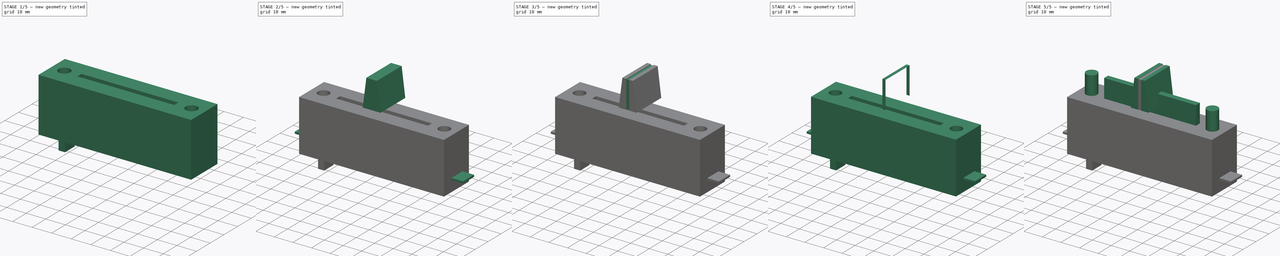
[diagram: build sequence overview — one tinted view per stage of 5, left to right]
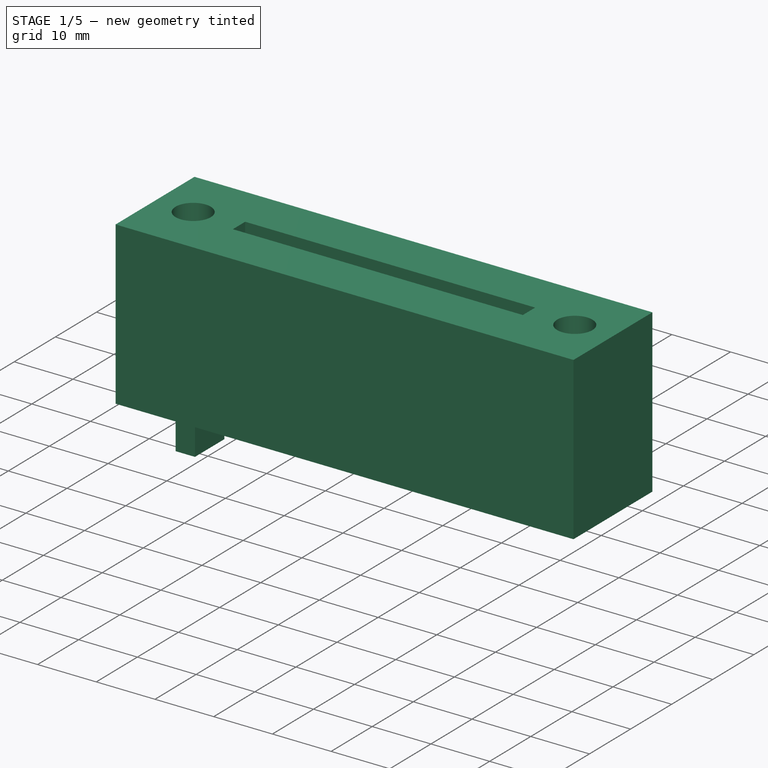
[diagram: stage 1 of 5 — iso view after this stage's code; geometry added in this stage tinted green]
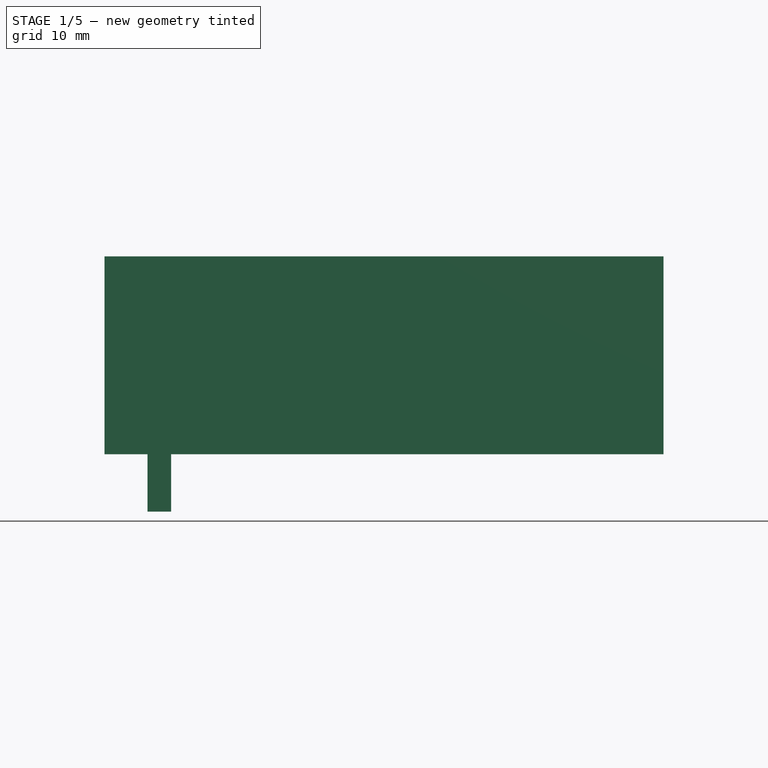
[diagram: stage 1 of 5 — front view after this stage's code; geometry added in this stage tinted green]
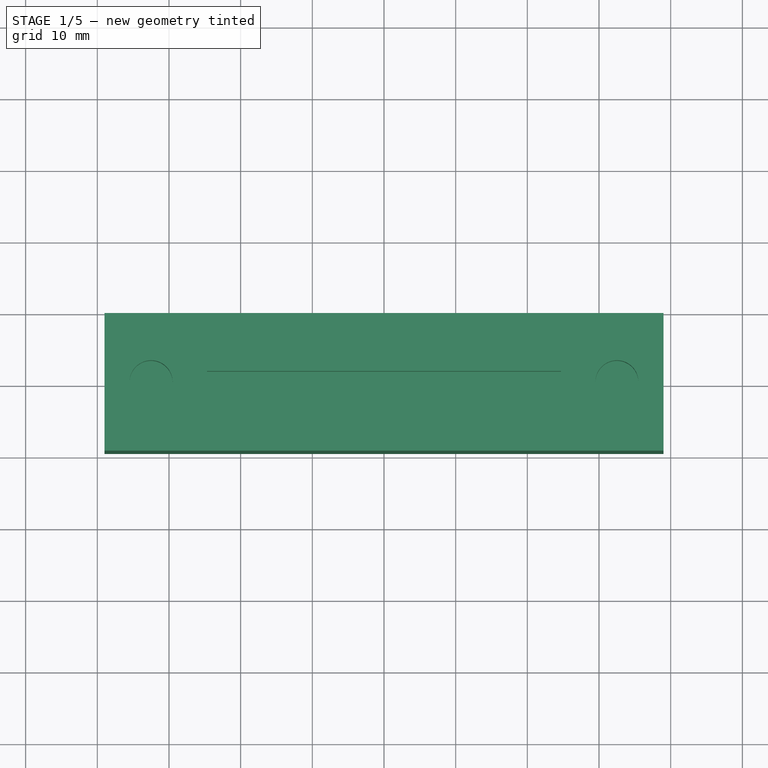
[diagram: stage 1 of 5 — top view after this stage's code; geometry added in this stage tinted green]
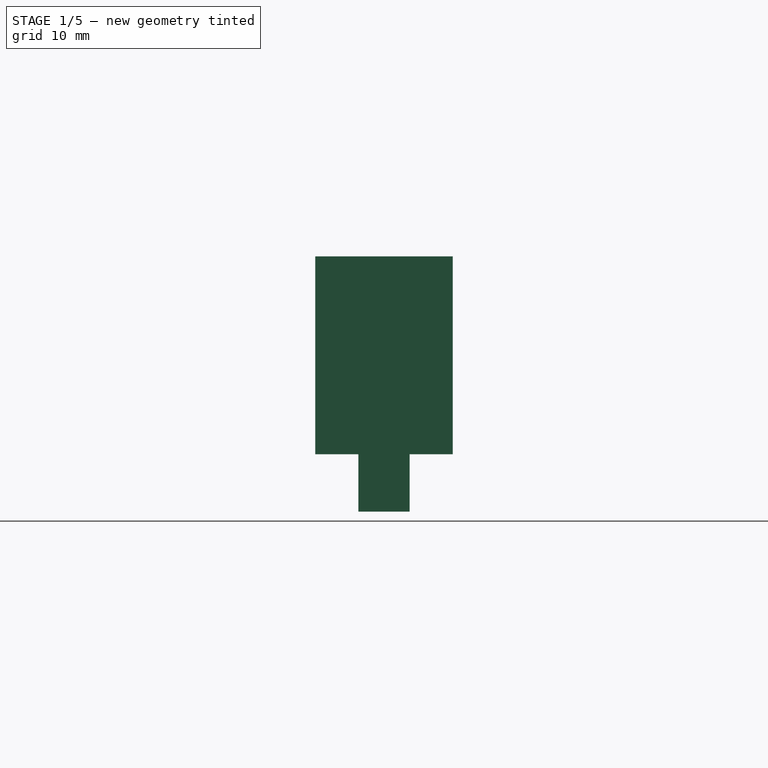
[diagram: stage 1 of 5 — right view after this stage's code; geometry added in this stage tinted green]
FCSTD DOCUMENT  (FreeCAD 0.18R13530 (Git))
Label: infiniumX1
License: All rights reserved
LicenseURL: http://en.wikipedia.org/wiki/All_rights_reserved
objects: Sketcher::SketchObject×14, Part::Extrusion×6, PartDesign::Pocket×5, PartDesign::Pad×3, Part::Compound×3, Part::Mirroring×2, Part::Feature×2
note: 43 computed .brp shape members not serialized (recipe doc carries the construction recipe); baked Part::Feature solids carry a one-line shape summary decoded from their .brp

FEATURE [Sketcher::SketchObject] Sketch
  MapMode = 5
  sketch-geometry (4):
    g0: LineSegment StartX=-39 StartY=9.6 StartZ=0 EndX=39 EndY=9.6 EndZ=0
    g1: LineSegment StartX=39 StartY=9.6 StartZ=0 EndX=39 EndY=-9.6 EndZ=0
    g2: LineSegment StartX=39 StartY=-9.6 StartZ=0 EndX=-39 EndY=-9.6 EndZ=0
    g3: LineSegment StartX=-39 StartY=-9.6 StartZ=0 EndX=-39 EndY=9.6 EndZ=0
  constraints (12):
    c: Coincident(g0,g1)
    c: Coincident(g1,g2)
    c: Coincident(g2,g3)
    c: Coincident(g3,g0)
    c: Horizontal(g0)
    c: Horizontal(g2)
    c: Vertical(g1)
    c: Vertical(g3)
    c: Symmetric(g2,g1,g-2)
    c: Symmetric(g1,g0,g-1)
    c: DistanceX(g2,g2) = 78
    c: DistanceY(g1,g1) = 19.2
FEATURE [PartDesign::Pad] Pad  label="_body"
  Length = 27.6
  Length2 = 100
  Profile = -> Sketch
  Reversed = true
  Type = 0
FEATURE [Sketcher::SketchObject] Sketch001  label="skrews"
  MapMode = 5
  Support = -> [Pad]
  sketch-geometry (2):
    g0: Circle CenterX=-32.5 CenterY=0 CenterZ=0 NormalX=0 NormalY=0 NormalZ=1 AngleXU=0 Radius=3
    g1: Circle CenterX=32.5 CenterY=0 CenterZ=0 NormalX=0 NormalY=0 NormalZ=1 AngleXU=0 Radius=3
  constraints (6):
    c: PointOnObject(g0,g-1)
    c: PointOnObject(g1,g-1)
    c: Equal(g0,g1)
    c: Radius(g0) = 3
    c: Symmetric(g1,g0,g-2)
    c: DistanceX(g0,g1) = 65
FEATURE [PartDesign::Pocket] Pocket
  Length = 5
  Length2 = 100
  Profile = -> Sketch001
  Type = 0
FEATURE [Sketcher::SketchObject] Sketch002
  ExternalGeometry = -> [Pocket]
  MapMode = 5
  Support = -> [Pocket]
  sketch-geometry (4):
    g0: LineSegment StartX=-24.7 StartY=1.5 StartZ=0 EndX=24.7 EndY=1.5 EndZ=0
    g1: LineSegment StartX=24.7 StartY=1.5 StartZ=0 EndX=24.7 EndY=-1.5 EndZ=0
    g2: LineSegment StartX=24.7 StartY=-1.5 StartZ=0 EndX=-24.7 EndY=-1.5 EndZ=0
    g3: LineSegment StartX=-24.7 StartY=-1.5 StartZ=0 EndX=-24.7 EndY=1.5 EndZ=0
  constraints (12):
    c: Coincident(g0,g1)
    c: Coincident(g1,g2)
    c: Coincident(g2,g3)
    c: Coincident(g3,g0)
    c: Horizontal(g0)
    c: Horizontal(g2)
    c: Vertical(g1)
    c: Vertical(g3)
    c: Symmetric(g0,g1,g-1)
    c: Symmetric(g0,g0,g-2)
    c: DistanceX(g-3,g0) = 14.3
    c: DistanceY(g1,g0) = 3
FEATURE [PartDesign::Pocket] Pocket001  label="Body"
  Length = 5
  Length2 = 100
  Profile = -> Sketch002
  Type = 0
FEATURE [Sketcher::SketchObject] Sketch012
  MapMode = 5
  Placement = pos=(0,0,-27.6) rot=(1,0,0;3.14159rad)
  sketch-geometry (4):
    g0: LineSegment StartX=-33 StartY=3.575 StartZ=0 EndX=-29.7 EndY=3.575 EndZ=0
    g1: LineSegment StartX=-29.7 StartY=3.575 StartZ=0 EndX=-29.7 EndY=-3.575 EndZ=0
    g2: LineSegment StartX=-29.7 StartY=-3.575 StartZ=0 EndX=-33 EndY=-3.575 EndZ=0
    g3: LineSegment StartX=-33 StartY=-3.575 StartZ=0 EndX=-33 EndY=3.575 EndZ=0
  constraints (11):
    c: Coincident(g0,g1)
    c: Coincident(g1,g2)
    c: Coincident(g2,g3)
    c: Coincident(g3,g0)
    c: Horizontal(g0)
    c: Horizontal(g2)
    c: Vertical(g1)
    c: Vertical(g3)
    c: Symmetric(g1,g0,g-1)
    c: DistanceX(g0,g0) = 3.3
    c: DistanceY(g3,g3) = 7.15
FEATURE [Part::Extrusion] Extrude004
  Base = -> Sketch012
  Dir = (0,0,-8)
  DirMode = 0
  FaceMakerClass = Part::FaceMakerExtrusion
  LengthFwd = 0
  LengthRev = 0
  Solid = true
  Symmetric = false
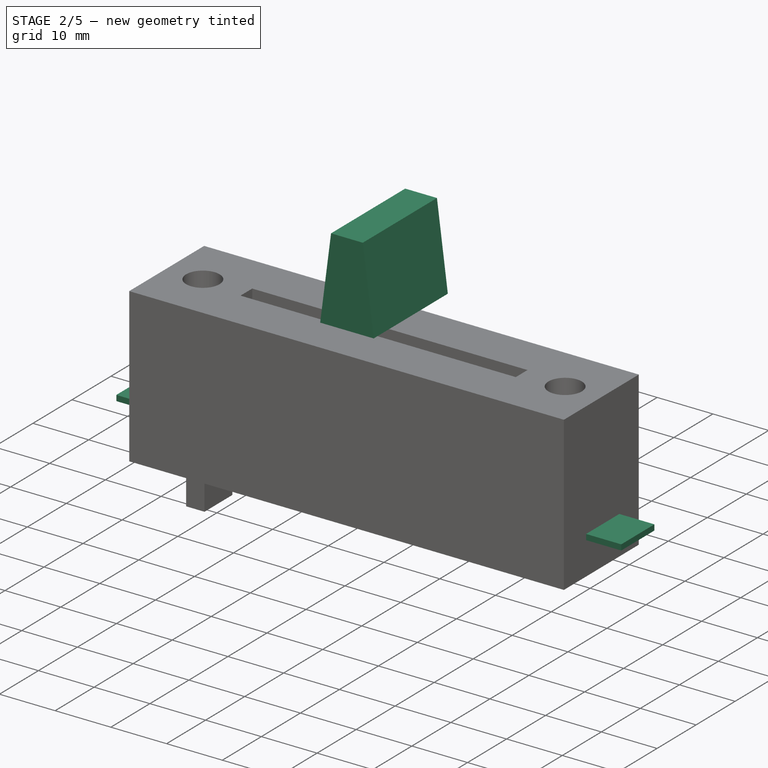
[diagram: stage 2 of 5 — iso view after this stage's code; geometry added in this stage tinted green]
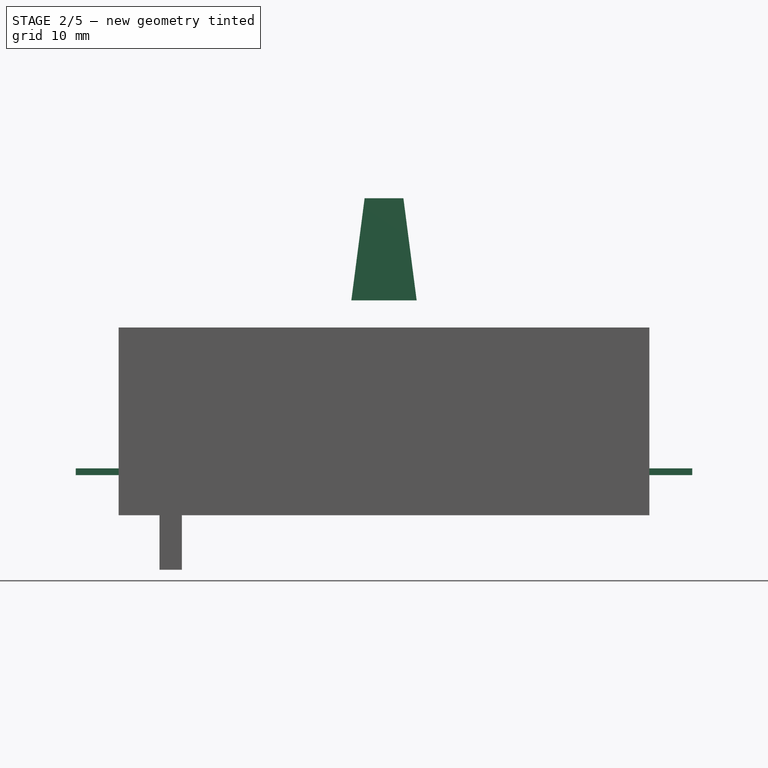
[diagram: stage 2 of 5 — front view after this stage's code; geometry added in this stage tinted green]
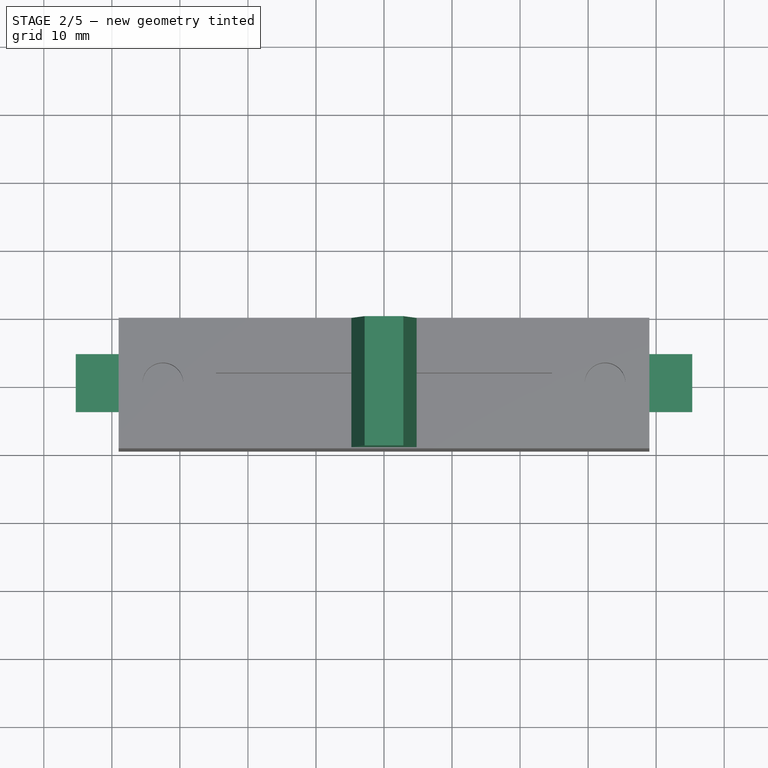
[diagram: stage 2 of 5 — top view after this stage's code; geometry added in this stage tinted green]
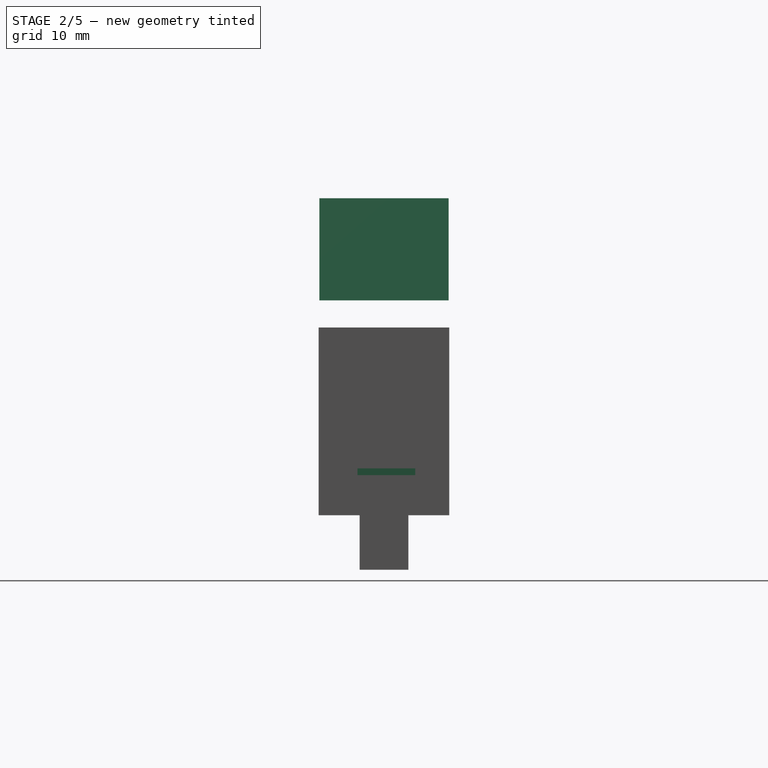
[diagram: stage 2 of 5 — right view after this stage's code; geometry added in this stage tinted green]
FEATURE [Sketcher::SketchObject] Sketch005
  ExternalGeometry = -> [Pocket001]
  MapMode = 5
  Placement = pos=(-39,0,0) rot=(0.57735,-0.57735,-0.57735;2.0944rad)
  Support = -> [Pocket001]
  sketch-geometry (4):
    g0: LineSegment StartX=-4.6 StartY=-20.7 StartZ=0 EndX=3.9 EndY=-20.7 EndZ=0
    g1: LineSegment StartX=3.9 StartY=-20.7 StartZ=0 EndX=3.9 EndY=-21.7 EndZ=0
    g2: LineSegment StartX=3.9 StartY=-21.7 StartZ=0 EndX=-4.6 EndY=-21.7 EndZ=0
    g3: LineSegment StartX=-4.6 StartY=-21.7 StartZ=0 EndX=-4.6 EndY=-20.7 EndZ=0
  constraints (12):
    c: Coincident(g0,g1)
    c: Coincident(g1,g2)
    c: Coincident(g2,g3)
    c: Coincident(g3,g0)
    c: Horizontal(g0)
    c: Horizontal(g2)
    c: Vertical(g1)
    c: Vertical(g3)
    c: DistanceX(g0,g0) = 8.5
    c: DistanceY(g1,g1) = 1
    c: DistanceY(g-3,g1) = 5.9
    c: DistanceX(g1,g-3) = 5.7
FEATURE [Part::Extrusion] Extrude002
  Base = -> Sketch005
  Dir = (-6.3,0,0)
  DirMode = 0
  FaceMakerClass = Part::FaceMakerExtrusion
  LengthFwd = 0
  LengthRev = 0
  Solid = true
  Symmetric = false
FEATURE [Part::Mirroring] Part__Mirroring  label="Extrude002 (Mirror #1)"
  Base = (0,0,0)
  Normal = (1,0,0)
  Source = -> Extrude002
FEATURE [Sketcher::SketchObject] Sketch007
  MapMode = 5
  Placement = pos=(0,0,0) rot=(1,0,0;1.5708rad)
  sketch-geometry (4):
    g0: LineSegment StartX=-2.85 StartY=19 StartZ=0 EndX=2.85 EndY=19 EndZ=0
    g1: LineSegment StartX=2.85 StartY=19 StartZ=0 EndX=4.8 EndY=4 EndZ=0
    g2: LineSegment StartX=4.8 StartY=4 StartZ=0 EndX=-4.8 EndY=4 EndZ=0
    g3: LineSegment StartX=-4.8 StartY=4 StartZ=0 EndX=-2.85 EndY=19 EndZ=0
  constraints (12):
    c: Horizontal(g0)
    c: Coincident(g0,g1)
    c: Coincident(g1,g2)
    c: Horizontal(g2)
    c: Coincident(g2,g3)
    c: Coincident(g3,g0)
    c: DistanceY(g1,g0) = 15
    c: Symmetric(g0,g0,g-2)
    c: Symmetric(g1,g2,g-2)
    c: DistanceX(g0,g0) = 5.7
    c: DistanceX(g2,g2) = 9.6
    c: DistanceY(g-1,g1) = 4
FEATURE [PartDesign::Pad] Pad002
  Length = 19
  Length2 = 100
  Midplane = true
  Placement = pos=(0,0,0) rot=(1,0,0;1.5708rad)
  Profile = -> Sketch007
  Type = 0
FEATURE [Part::Compound] Compound002  label="CrossfaderBody"
  Links = -> [Extrude004,Pocket001,Part__Mirroring,Extrude002]
FEATURE [Part::Feature] Pad001001  label="CrossfaderNeck001"
  Placement = pos=(-21,0,0) rot=(1,0,0;1.5708rad)
  shape: bbox 6 x 1.2 x 12 mm, 12 faces (baked)
FEATURE [Part::Feature] Pocket004001  label="CrossfaderTop001"
  Placement = pos=(-21,0,0) rot=(1,0,0;1.5708rad)
  shape: bbox 9.6 x 19 x 15 mm, 18 faces (baked)
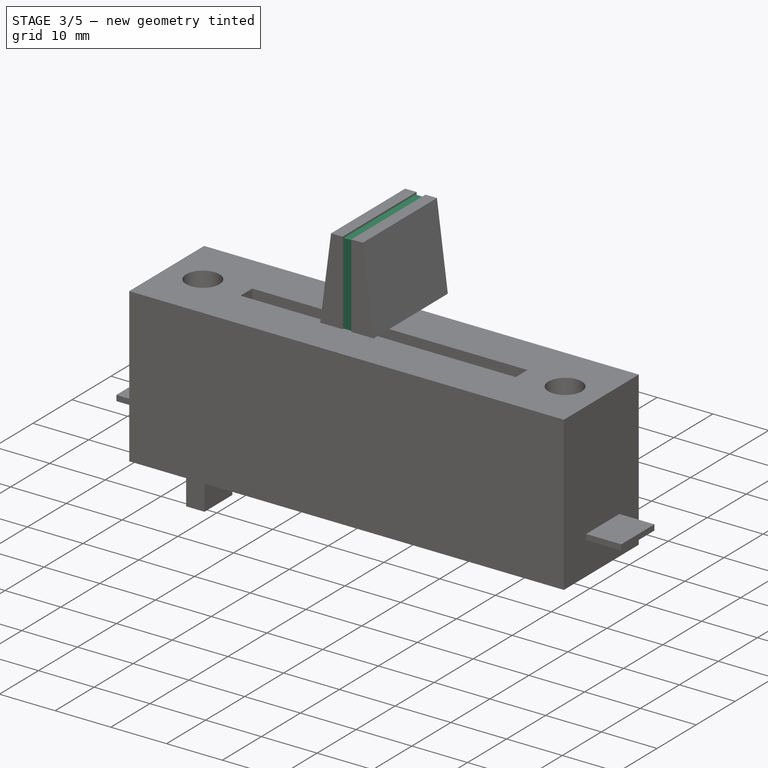
[diagram: stage 3 of 5 — iso view after this stage's code; geometry added in this stage tinted green]
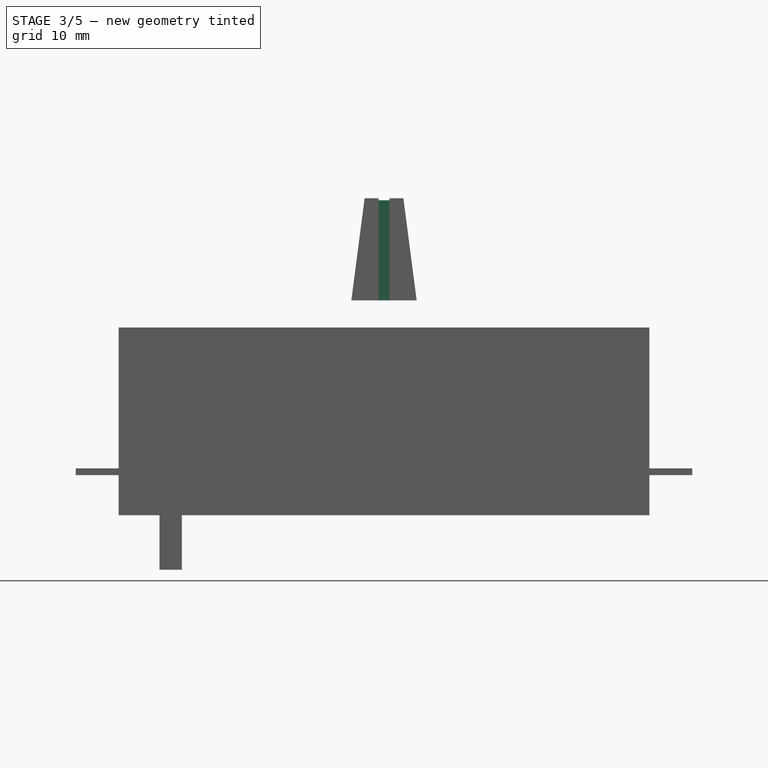
[diagram: stage 3 of 5 — front view after this stage's code; geometry added in this stage tinted green]
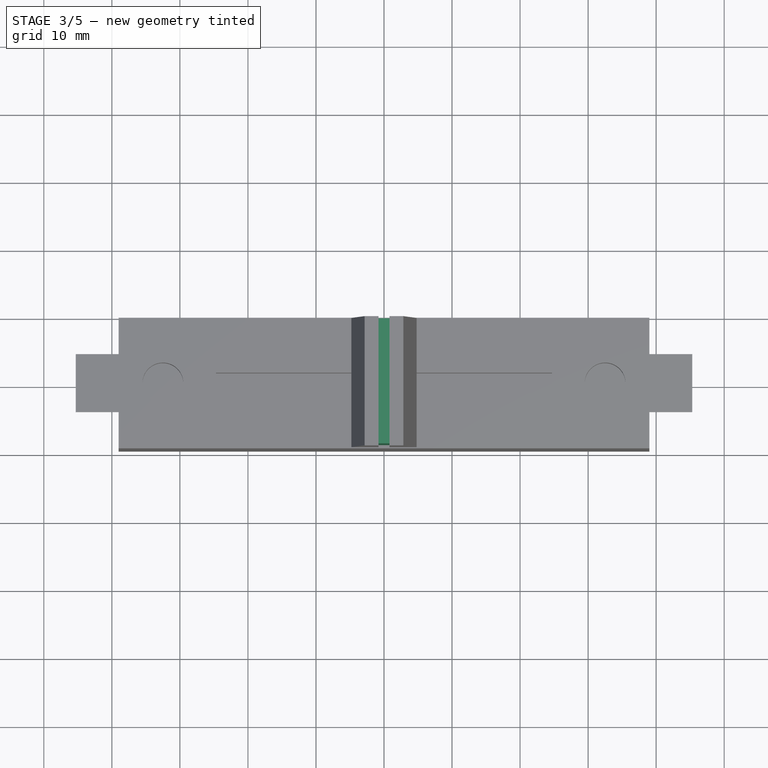
[diagram: stage 3 of 5 — top view after this stage's code; geometry added in this stage tinted green]
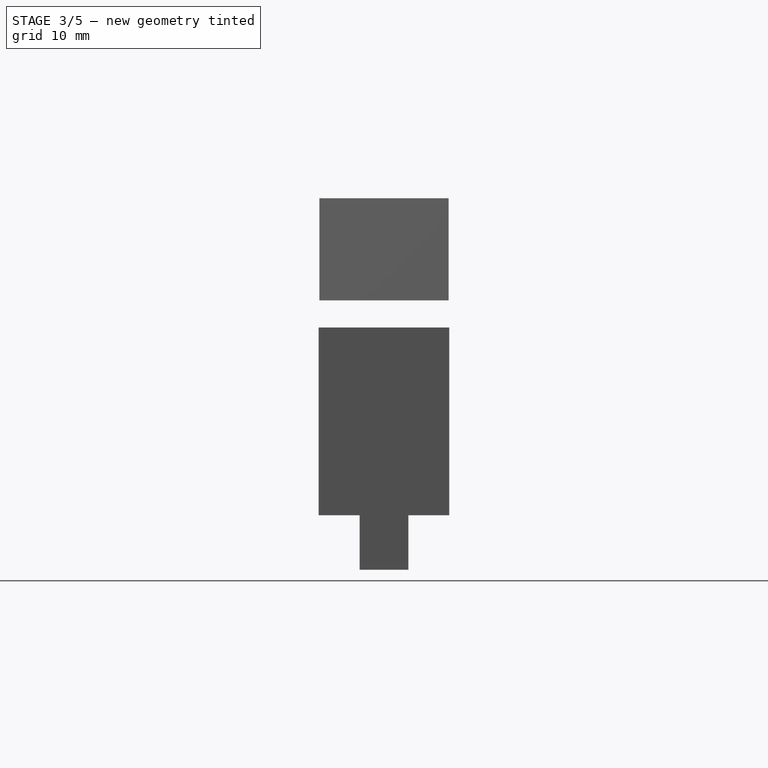
[diagram: stage 3 of 5 — right view after this stage's code; geometry added in this stage tinted green]
FEATURE [Sketcher::SketchObject] Sketch008
  ExternalGeometry = -> [Pad002]
  MapMode = 5
  Placement = pos=(0,9.5,0) rot=(-1,0,0;1.5708rad)
  Support = -> [Pad002]
  sketch-geometry (4):
    g0: LineSegment StartX=-0.8 StartY=-4 StartZ=0 EndX=0.8 EndY=-4 EndZ=0
    g1: LineSegment StartX=0.8 StartY=-4 StartZ=0 EndX=0.8 EndY=-19 EndZ=0
    g2: LineSegment StartX=0.8 StartY=-19 StartZ=0 EndX=-0.8 EndY=-19 EndZ=0
    g3: LineSegment StartX=-0.8 StartY=-19 StartZ=0 EndX=-0.8 EndY=-4 EndZ=0
  constraints (12):
    c: Coincident(g0,g1)
    c: Coincident(g1,g2)
    c: Coincident(g2,g3)
    c: Coincident(g3,g0)
    c: Horizontal(g0)
    c: Horizontal(g2)
    c: Vertical(g1)
    c: Vertical(g3)
    c: PointOnObject(g1,g-4)
    c: Symmetric(g0,g0,g-2)
    c: DistanceX(g0,g0) = 1.6
    c: PointOnObject(g0,g-3)
FEATURE [PartDesign::Pocket] Pocket002
  Length = 0.3
  Length2 = 100
  Placement = pos=(0,0,0) rot=(1,0,0;1.5708rad)
  Profile = -> Sketch008
  Type = 0
FEATURE [Sketcher::SketchObject] Sketch009
  ExternalGeometry = -> [Pocket002]
  MapMode = 5
  Placement = pos=(0,-9.5,0) rot=(1,0,0;1.5708rad)
  Support = -> [Pocket002]
  sketch-geometry (4):
    g0: LineSegment StartX=-0.8 StartY=19 StartZ=0 EndX=0.8 EndY=19 EndZ=0
    g1: LineSegment StartX=0.8 StartY=19 StartZ=0 EndX=0.8 EndY=4 EndZ=0
    g2: LineSegment StartX=0.8 StartY=4 StartZ=0 EndX=-0.8 EndY=4 EndZ=0
    g3: LineSegment StartX=-0.8 StartY=4 StartZ=0 EndX=-0.8 EndY=19 EndZ=0
  constraints (12):
    c: Coincident(g0,g1)
    c: Coincident(g1,g2)
    c: Coincident(g2,g3)
    c: Coincident(g3,g0)
    c: Horizontal(g0)
    c: Horizontal(g2)
    c: Vertical(g1)
    c: Vertical(g3)
    c: DistanceX(g0,g0) = 1.6
    c: PointOnObject(g1,g-4)
    c: PointOnObject(g0,g-3)
    c: Symmetric(g1,g2,g-2)
FEATURE [PartDesign::Pocket] Pocket003
  Length = 0.3
  Length2 = 100
  Placement = pos=(0,0,0) rot=(1,0,0;1.5708rad)
  Profile = -> Sketch009
  Type = 0
FEATURE [Sketcher::SketchObject] Sketch010
  ExternalGeometry = -> [Pocket003]
  MapMode = 5
  Placement = pos=(0,0,19) rot=(0,0,1;3.14159rad)
  Support = -> [Pocket003]
  sketch-geometry (4):
    g0: LineSegment StartX=-0.8 StartY=9.2 StartZ=0 EndX=0.8 EndY=9.2 EndZ=0
    g1: LineSegment StartX=0.8 StartY=9.2 StartZ=0 EndX=0.8 EndY=-9.2 EndZ=0
    g2: LineSegment StartX=0.8 StartY=-9.2 StartZ=0 EndX=-0.8 EndY=-9.2 EndZ=0
    g3: LineSegment StartX=-0.8 StartY=-9.2 StartZ=0 EndX=-0.8 EndY=9.2 EndZ=0
  constraints (10):
    c: Coincident(g0,g1)
    c: Coincident(g1,g2)
    c: Coincident(g2,g3)
    c: Coincident(g3,g0)
    c: Horizontal(g0)
    c: Horizontal(g2)
    c: Vertical(g1)
    c: Vertical(g3)
    c: Coincident(g0,g-3)
    c: Coincident(g1,g-4)
FEATURE [PartDesign::Pocket] Pocket004  label="CrossfaderTop"
  Length = 0.3
  Length2 = 100
  Placement = pos=(0,0,0) rot=(1,0,0;1.5708rad)
  Profile = -> Sketch010
  Type = 0
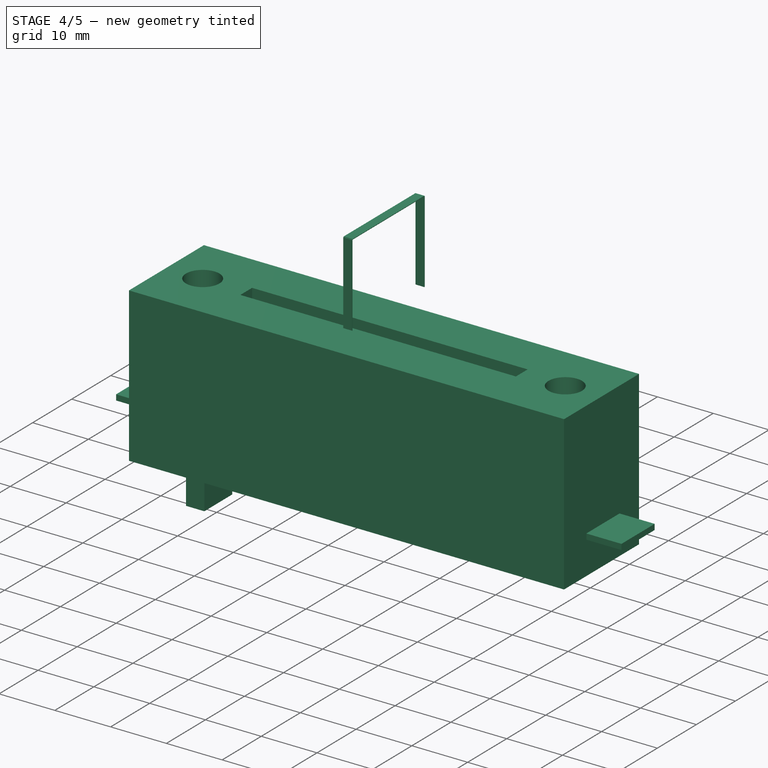
[diagram: stage 4 of 5 — iso view after this stage's code; geometry added in this stage tinted green]
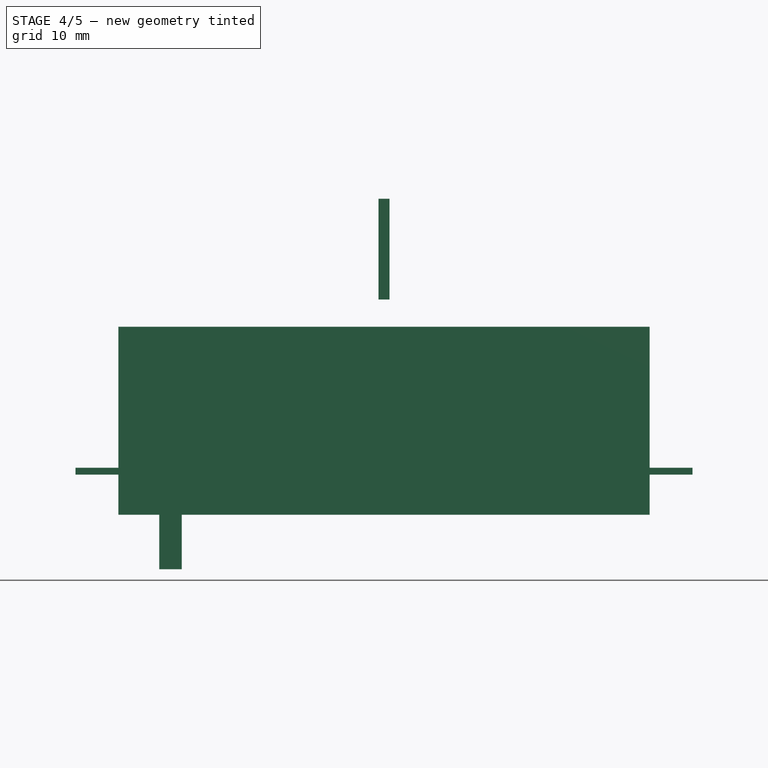
[diagram: stage 4 of 5 — front view after this stage's code; geometry added in this stage tinted green]
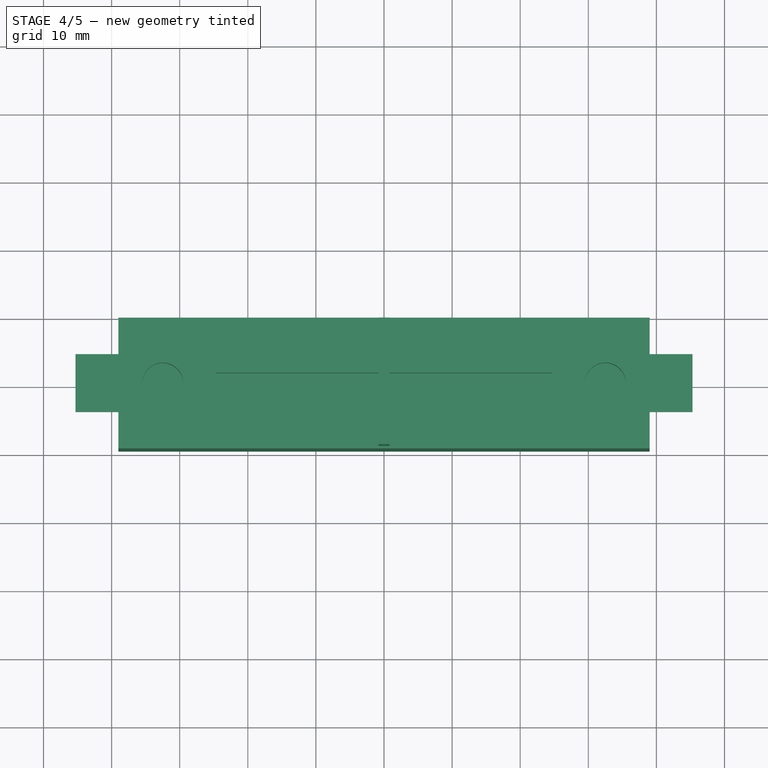
[diagram: stage 4 of 5 — top view after this stage's code; geometry added in this stage tinted green]
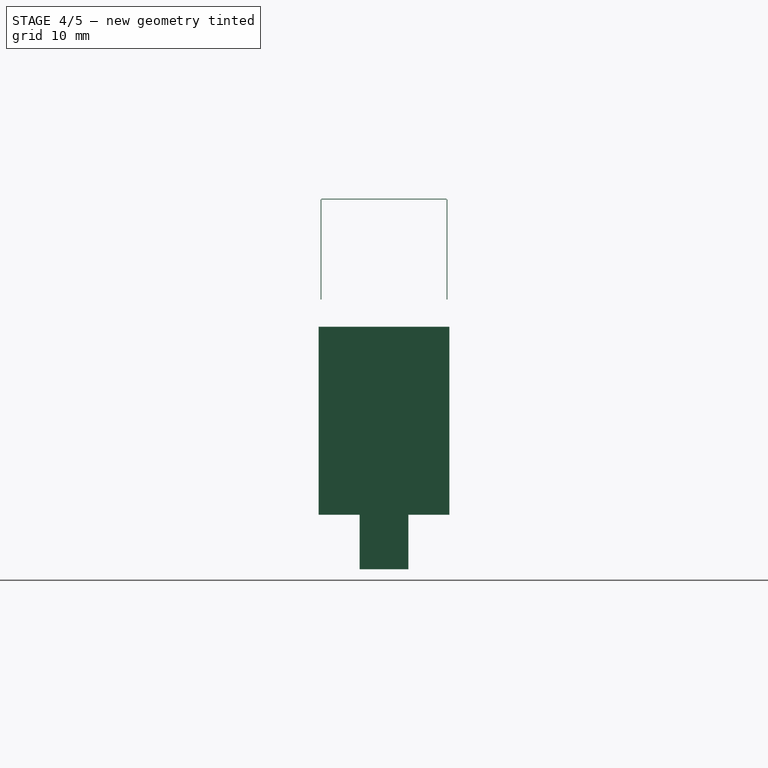
[diagram: stage 4 of 5 — right view after this stage's code; geometry added in this stage tinted green]
FEATURE [Sketcher::SketchObject] Sketch011
  ExternalGeometry = -> [Pocket004]
  MapMode = 5
  Placement = pos=(0,0,18.7) rot=(0,0,1;3.14159rad)
  Support = -> [Pocket004]
  sketch-geometry (4):
    g0: LineSegment StartX=-0.8 StartY=9.2 StartZ=0 EndX=0.8 EndY=9.2 EndZ=0
    g1: LineSegment StartX=0.8 StartY=9.2 StartZ=0 EndX=0.8 EndY=-9.2 EndZ=0
    g2: LineSegment StartX=0.8 StartY=-9.2 StartZ=0 EndX=-0.8 EndY=-9.2 EndZ=0
    g3: LineSegment StartX=-0.8 StartY=-9.2 StartZ=0 EndX=-0.8 EndY=9.2 EndZ=0
  constraints (10):
    c: Coincident(g0,g1)
    c: Coincident(g1,g2)
    c: Coincident(g2,g3)
    c: Coincident(g3,g0)
    c: Horizontal(g0)
    c: Horizontal(g2)
    c: Vertical(g1)
    c: Vertical(g3)
    c: Coincident(g0,g-3)
    c: Coincident(g1,g-4)
FEATURE [Part::Extrusion] Extrude003
  Base = -> Sketch011
  Dir = (0,0,0.1)
  DirMode = 0
  FaceMakerClass = Part::FaceMakerExtrusion
  LengthFwd = 0
  LengthRev = 0
  Solid = true
  Symmetric = false
FEATURE [Sketcher::SketchObject] Sketch013
  ExternalGeometry = -> [Pocket004]
  MapMode = 5
  Placement = pos=(0,-9.2,0) rot=(1,0,0;1.5708rad)
  Support = -> [Pocket004]
  sketch-geometry (4):
    g0: LineSegment StartX=-0.8 StartY=18.7 StartZ=0 EndX=0.8 EndY=18.7 EndZ=0
    g1: LineSegment StartX=0.8 StartY=18.7 StartZ=0 EndX=0.8 EndY=4 EndZ=0
    g2: LineSegment StartX=0.8 StartY=4 StartZ=0 EndX=-0.8 EndY=4 EndZ=0
    g3: LineSegment StartX=-0.8 StartY=4 StartZ=0 EndX=-0.8 EndY=18.7 EndZ=0
  constraints (10):
    c: Coincident(g0,g1)
    c: Coincident(g1,g2)
    c: Coincident(g2,g3)
    c: Coincident(g3,g0)
    c: Horizontal(g0)
    c: Horizontal(g2)
    c: Vertical(g1)
    c: Vertical(g3)
    c: Coincident(g0,g-4)
    c: Coincident(g1,g-3)
FEATURE [Part::Extrusion] Extrude005
  Base = -> Sketch013
  Dir = (0,-0.1,0)
  DirMode = 0
  FaceMakerClass = Part::FaceMakerExtrusion
  LengthFwd = 0
  LengthRev = 0
  Solid = true
  Symmetric = false
FEATURE [Part::Mirroring] Part__Mirroring001  label="Extrude005 (Mirror #2)"
  Base = (0,0,0)
  Normal = (0,1,0)
  Source = -> Extrude005
FEATURE [Part::Compound] Compound001  label="CrossfaderWhiteStripe"
  Links = -> [Extrude003,Part__Mirroring001,Extrude005,Sketch013]
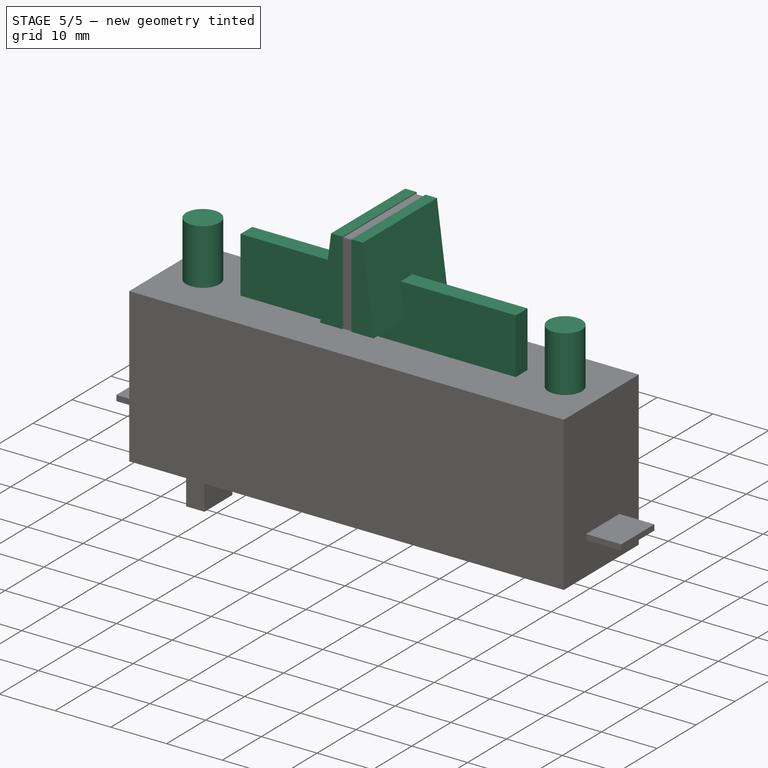
[diagram: stage 5 of 5 — iso view after this stage's code; geometry added in this stage tinted green]
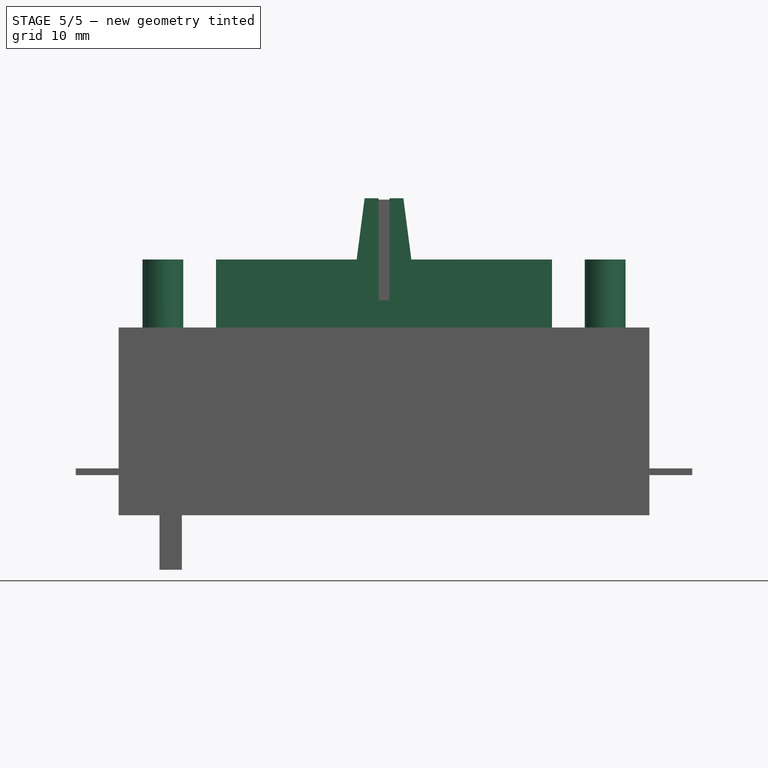
[diagram: stage 5 of 5 — front view after this stage's code; geometry added in this stage tinted green]
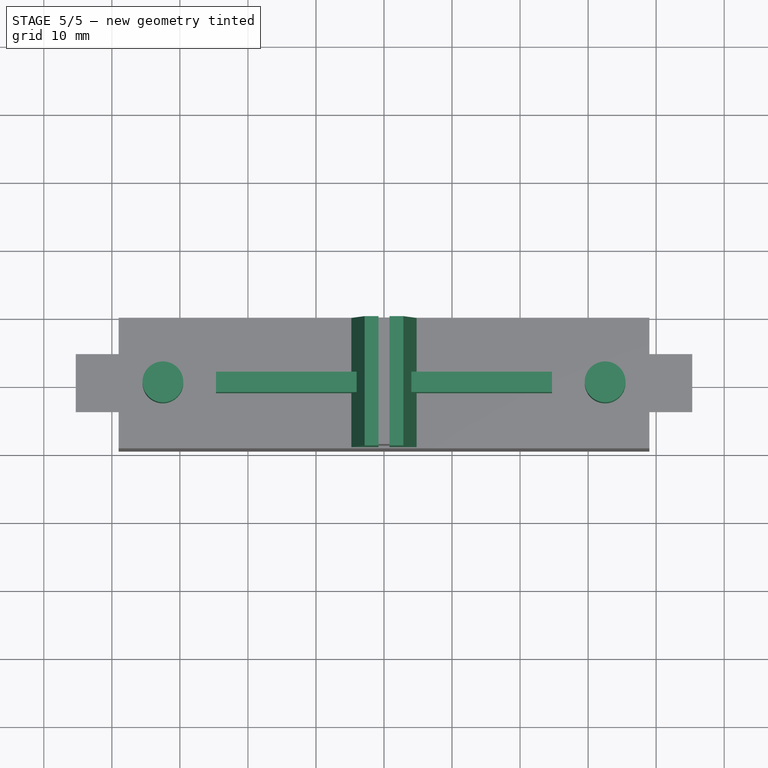
[diagram: stage 5 of 5 — top view after this stage's code; geometry added in this stage tinted green]
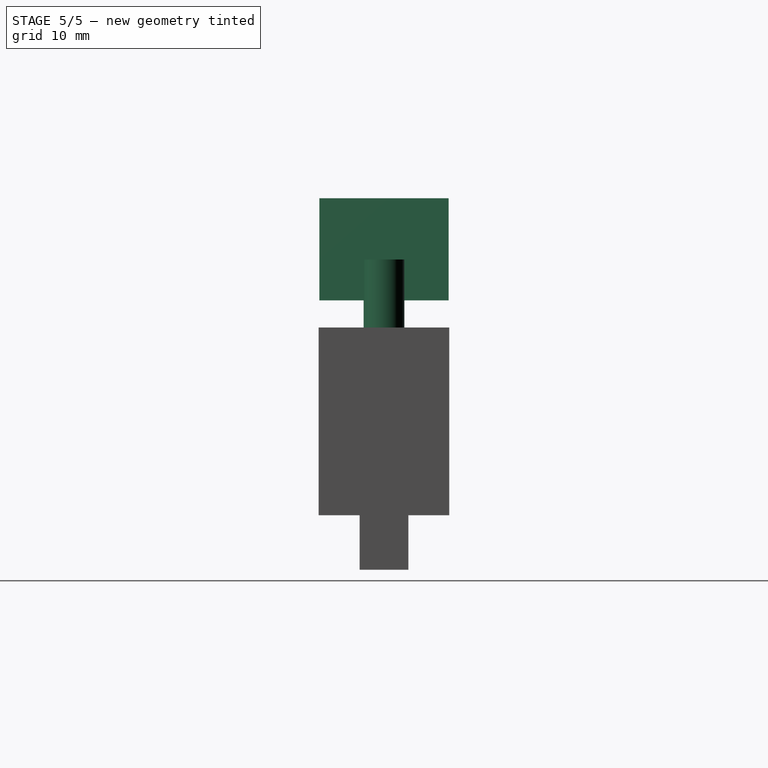
[diagram: stage 5 of 5 — right view after this stage's code; geometry added in this stage tinted green]
FEATURE [Sketcher::SketchObject] Sketch003  label="skrews001"
  MapMode = 5
  Support = -> [Pad]
  sketch-geometry (2):
    g0: Circle CenterX=-32.5 CenterY=0 CenterZ=0 NormalX=0 NormalY=0 NormalZ=1 AngleXU=0 Radius=3
    g1: Circle CenterX=32.5 CenterY=0 CenterZ=0 NormalX=0 NormalY=0 NormalZ=1 AngleXU=0 Radius=3
  constraints (6):
    c: PointOnObject(g0,g-1)
    c: PointOnObject(g1,g-1)
    c: Equal(g0,g1)
    c: Radius(g0) = 3
    c: Symmetric(g1,g0,g-2)
    c: DistanceX(g0,g1) = 65
FEATURE [Part::Extrusion] Extrude  label="ScrewHoles"
  Base = -> Sketch003
  Dir = (0,0,10)
  DirMode = 0
  FaceMakerClass = Part::FaceMakerExtrusion
  LengthFwd = 0
  LengthRev = 0
  Solid = true
  Symmetric = false
FEATURE [Sketcher::SketchObject] Sketch004
  ExternalGeometry = -> [Pocket]
  MapMode = 5
  Support = -> [Pocket]
  sketch-geometry (4):
    g0: LineSegment StartX=-24.7 StartY=1.5 StartZ=0 EndX=24.7 EndY=1.5 EndZ=0
    g1: LineSegment StartX=24.7 StartY=1.5 StartZ=0 EndX=24.7 EndY=-1.5 EndZ=0
    g2: LineSegment StartX=24.7 StartY=-1.5 StartZ=0 EndX=-24.7 EndY=-1.5 EndZ=0
    g3: LineSegment StartX=-24.7 StartY=-1.5 StartZ=0 EndX=-24.7 EndY=1.5 EndZ=0
  constraints (12):
    c: Coincident(g0,g1)
    c: Coincident(g1,g2)
    c: Coincident(g2,g3)
    c: Coincident(g3,g0)
    c: Horizontal(g0)
    c: Horizontal(g2)
    c: Vertical(g1)
    c: Vertical(g3)
    c: Symmetric(g0,g1,g-1)
    c: Symmetric(g0,g0,g-2)
    c: DistanceX(g-3,g0) = 14.3
    c: DistanceY(g1,g0) = 3
FEATURE [Part::Extrusion] Extrude001  label="FaderRunHole"
  Base = -> Sketch004
  Dir = (0,0,10)
  DirMode = 0
  FaceMakerClass = Part::FaceMakerExtrusion
  LengthFwd = 0
  LengthRev = 0
  Solid = true
  Symmetric = false
FEATURE [Sketcher::SketchObject] Sketch006
  MapMode = 5
  Placement = pos=(0,0,0) rot=(1,0,0;1.5708rad)
  sketch-geometry (10):
    g0: LineSegment StartX=-3 StartY=-1 StartZ=0 EndX=3 EndY=-1 EndZ=0
    g1: LineSegment StartX=3 StartY=-1 StartZ=0 EndX=3 EndY=1 EndZ=0
    g2: LineSegment StartX=3 StartY=1 StartZ=0 EndX=2 EndY=1 EndZ=0
    g3: LineSegment StartX=2 StartY=1 StartZ=0 EndX=2 EndY=10.8734 EndZ=0
    g4: LineSegment StartX=1.87342 StartY=11 StartZ=0 EndX=-1.87342 EndY=11 EndZ=0
    g5: LineSegment StartX=-2 StartY=10.8734 StartZ=0 EndX=-2 EndY=1 EndZ=0
    g6: LineSegment StartX=-2 StartY=1 StartZ=0 EndX=-3 EndY=1 EndZ=0
    g7: LineSegment StartX=-3 StartY=1 StartZ=0 EndX=-3 EndY=-1 EndZ=0
    g8: ArcOfCircle CenterX=-1.87342 CenterY=10.8734 CenterZ=0 NormalX=0 NormalY=0 NormalZ=1 AngleXU=0 Radius=0.126583 StartAngle=1.5708 EndAngle=3.14159
    g9: ArcOfCircle CenterX=1.87342 CenterY=10.8734 CenterZ=0 NormalX=0 NormalY=0 NormalZ=1 AngleXU=0 Radius=0.126583 StartAngle=0 EndAngle=1.5708
  constraints (27):
    c: Horizontal(g0)
    c: Coincident(g0,g1)
    c: Vertical(g1)
    c: Coincident(g1,g2)
    c: Horizontal(g2)
    c: Coincident(g2,g3)
    c: Vertical(g3)
    c: Horizontal(g4)
    c: Vertical(g5)
    c: Coincident(g5,g6)
    c: Coincident(g6,g7)
    c: Coincident(g7,g0)
    c: Vertical(g7)
    c: DistanceX(g0,g0) = 6
    c: Horizontal(g6)
    c: Equal(g6,g2)
    c: Equal(g3,g5)
    c: Equal(g7,g1)
    c: DistanceX(g2,g2) = 1
    c: Tangent(g5,g8) = -1.5708
    c: Tangent(g4,g8) = -1.5708
    c: Tangent(g3,g9) = -1.5708
    c: Tangent(g4,g9) = -1.5708
    c: Symmetric(g2,g5,g-2)
    c: DistanceY(g5,g4) = 10
    c: DistanceY(g7,g7) = 2
    c: DistanceY(g-1,g2) = 1
FEATURE [PartDesign::Pad] Pad001  label="CrossfaderNeck"
  Length = 1.2
  Length2 = 100
  Midplane = true
  Placement = pos=(0,0,0) rot=(1,0,0;1.5708rad)
  Profile = -> Sketch006
  Type = 0
FEATURE [Part::Compound] Compound  label="Crossfader"
  Links = -> [Extrude004,Pocket001,Part__Mirroring,Pad001,Pocket004,Extrude003,Part__Mirroring001]
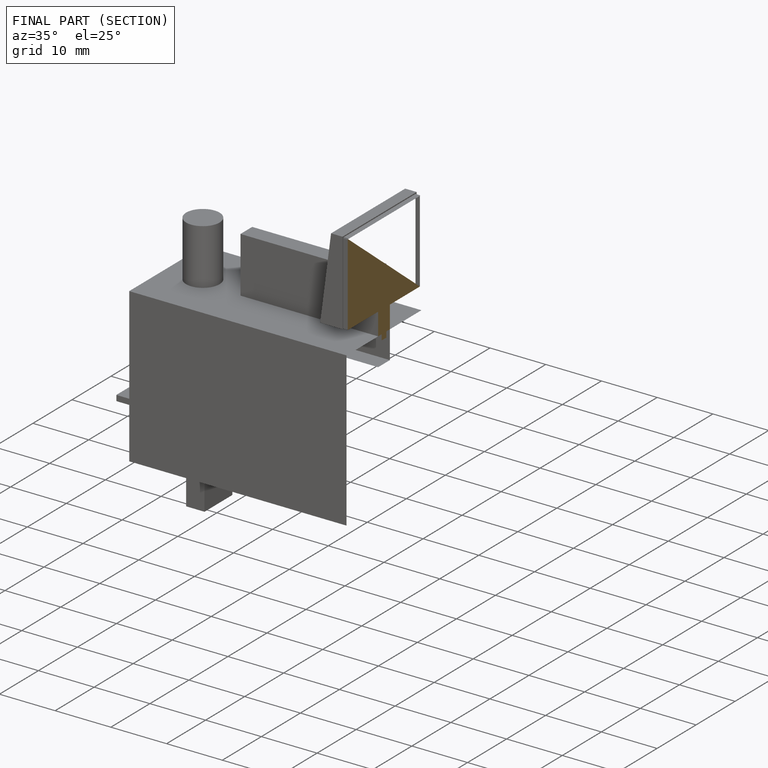
[diagram: finished part — half-section view (interior)]
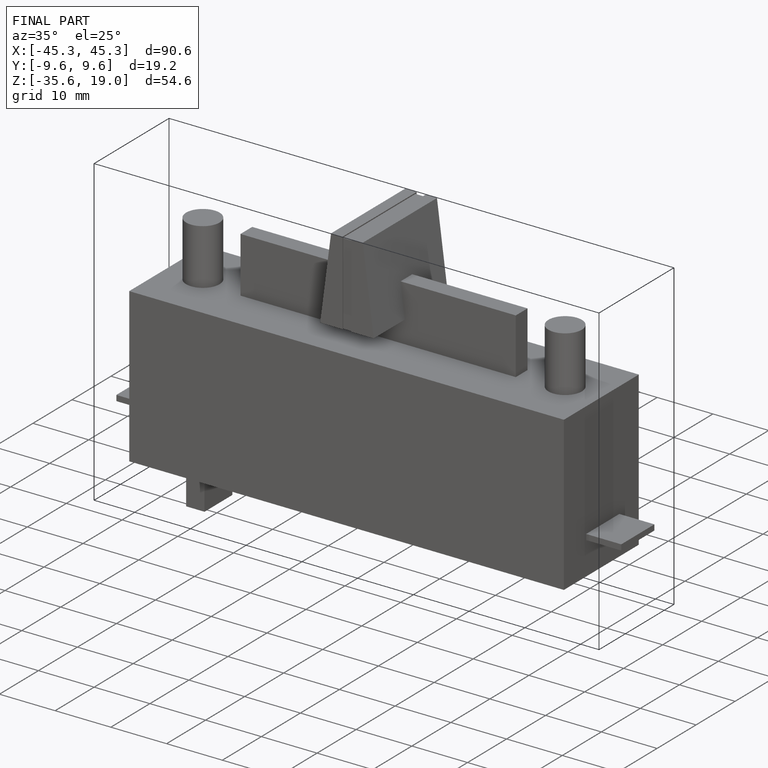
[diagram: finished part — iso view with bounding-box wireframe]
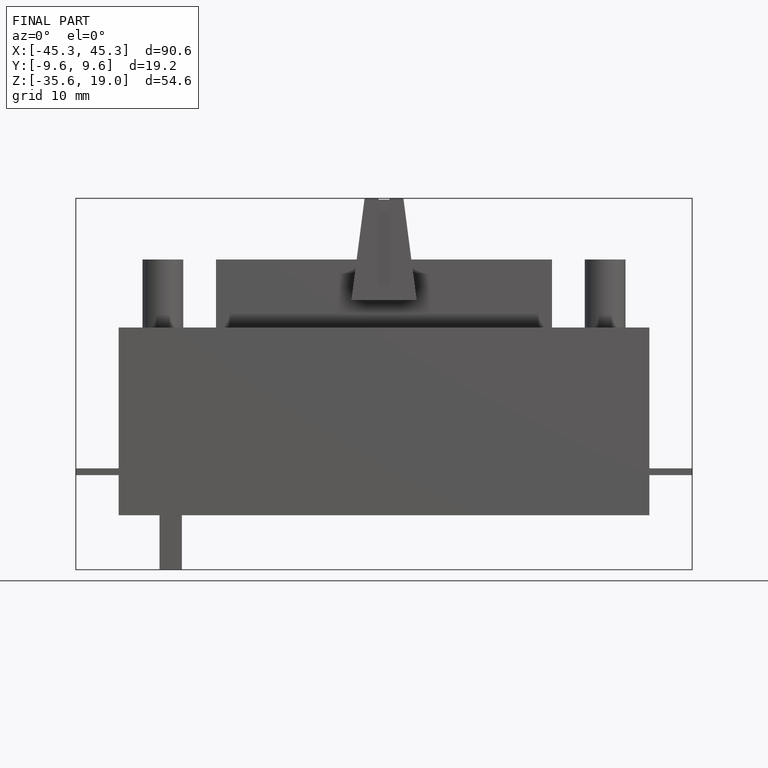
[diagram: finished part — front view with bounding-box wireframe]
